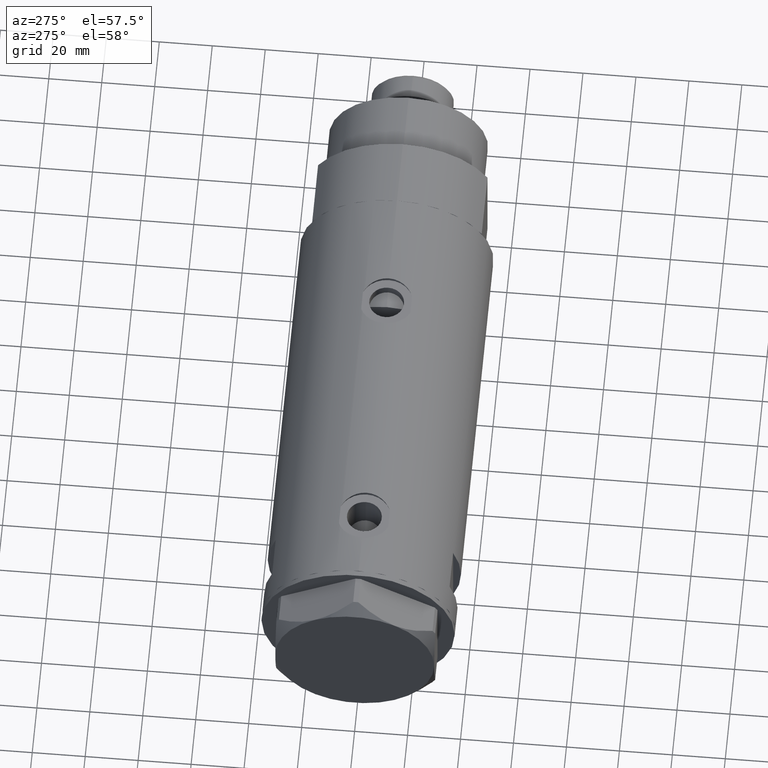
[diagram: clean part render]
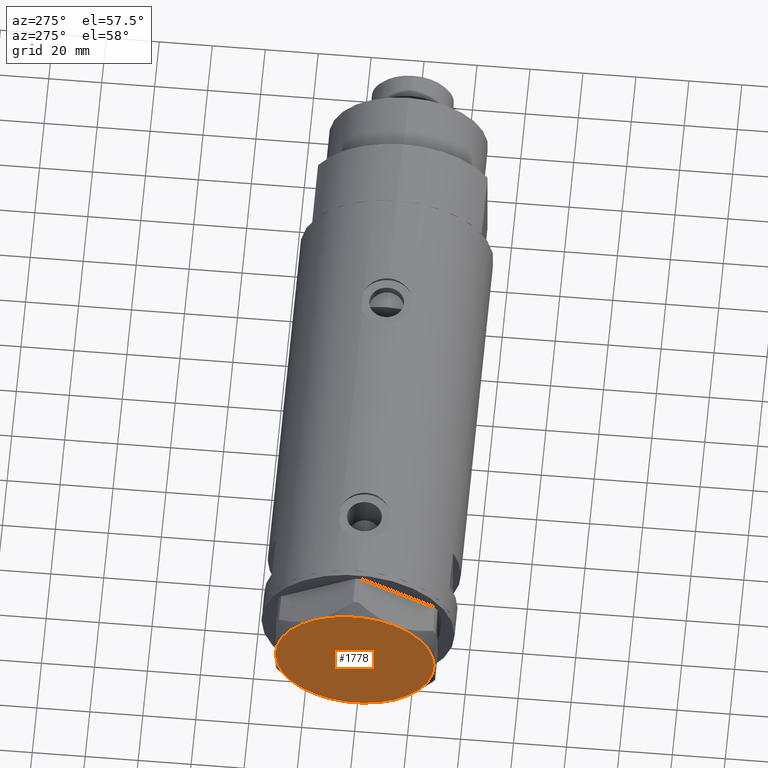
[diagram: same view with one face highlighted and labeled with its STEP entity id]
A machine part, auxiliary view. The second image highlights one B-rep face of the part: STEP entity #1778.
In plain terms, the highlighted planar face has unit normal (-1, -0, 0).
Its self-contained STEP definition (entity closure, byte-faithful):
#28 = VERTEX_POINT ( 'NONE', #997 ) ;
#39 = CARTESIAN_POINT ( 'NONE',  ( -14.99999999999999645, -25.98076211353316367, 14.50000000000000000 ) ) ;
#106 = VERTEX_POINT ( 'NONE', #4785 ) ;
#117 = DIRECTION ( 'NONE',  ( 0.000000000000000000, 0.000000000000000000, 1.000000000000000000 ) ) ;
#129 = DIRECTION ( 'NONE',  ( 0.000000000000000000, 0.000000000000000000, 1.000000000000000000 ) ) ;
#170 = AXIS2_PLACEMENT_3D ( 'NONE', #2016, #3597, #551 ) ;
#194 = ORIENTED_EDGE ( 'NONE', *, *, #755, .T. ) ;
#327 = AXIS2_PLACEMENT_3D ( 'NONE', #2415, #1729, #3885 ) ;
#551 = DIRECTION ( 'NONE',  ( 1.000000000000000000, 0.000000000000000000, 0.000000000000000000 ) ) ;
#576 = EDGE_CURVE ( 'NONE', #3097, #3958, #2876, .T. ) ;
#582 = DIRECTION ( 'NONE',  ( 1.000000000000000000, 0.000000000000000000, 0.000000000000000000 ) ) ;
#755 = EDGE_CURVE ( 'NONE', #28, #4384, #4737, .T. ) ;
#891 = AXIS2_PLACEMENT_3D ( 'NONE', #4671, #2831, #3624 ) ;
#925 = ORIENTED_EDGE ( 'NONE', *, *, #576, .T. ) ;
#997 = CARTESIAN_POINT ( 'NONE',  ( -30.00000000000000000, 0.000000000000000000, 14.50000000000000000 ) ) ;
#1015 = EDGE_CURVE ( 'NONE', #4384, #3864, #2946, .T. ) ;
#1091 = PLANE ( 'NONE',  #891 ) ;
#1254 = DIRECTION ( 'NONE',  ( 1.000000000000000000, 0.000000000000000000, 0.000000000000000000 ) ) ;
#1579 = AXIS2_PLACEMENT_3D ( 'NONE', #3943, #3620, #2543 ) ;
#1585 = AXIS2_PLACEMENT_3D ( 'NONE', #2409, #129, #1254 ) ;
#1729 = DIRECTION ( 'NONE',  ( 0.000000000000000000, 0.000000000000000000, 1.000000000000000000 ) ) ;
#1751 = CIRCLE ( 'NONE', #170, 30.00000000000000000 ) ;
#1778 = ADVANCED_FACE ( 'NONE', ( #3526 ), #1091, .T. ) ;
#1922 = CARTESIAN_POINT ( 'NONE',  ( 14.99999999999999467, 25.98076211353316367, 14.50000000000000000 ) ) ;
#2016 = CARTESIAN_POINT ( 'NONE',  ( 0.000000000000000000, 0.000000000000000000, 14.50000000000000000 ) ) ;
#2059 = AXIS2_PLACEMENT_3D ( 'NONE', #4550, #117, #582 ) ;
#2211 = CIRCLE ( 'NONE', #1585, 30.00000000000000000 ) ;
#2239 = EDGE_CURVE ( 'NONE', #3958, #106, #4137, .T. ) ;
#2409 = CARTESIAN_POINT ( 'NONE',  ( 0.000000000000000000, 0.000000000000000000, 14.50000000000000000 ) ) ;
#2415 = CARTESIAN_POINT ( 'NONE',  ( 0.000000000000000000, 0.000000000000000000, 14.50000000000000000 ) ) ;
#2543 = DIRECTION ( 'NONE',  ( 1.000000000000000000, 0.000000000000000000, 0.000000000000000000 ) ) ;
#2555 = ORIENTED_EDGE ( 'NONE', *, *, #2239, .T. ) ;
#2579 = AXIS2_PLACEMENT_3D ( 'NONE', #4551, #3365, #4146 ) ;
#2724 = EDGE_CURVE ( 'NONE', #3864, #3097, #1751, .T. ) ;
#2831 = DIRECTION ( 'NONE',  ( 0.000000000000000000, 0.000000000000000000, 1.000000000000000000 ) ) ;
#2876 = CIRCLE ( 'NONE', #2579, 30.00000000000000000 ) ;
#2922 = ORIENTED_EDGE ( 'NONE', *, *, #2724, .T. ) ;
#2946 = CIRCLE ( 'NONE', #327, 30.00000000000000000 ) ;
#3097 = VERTEX_POINT ( 'NONE', #3980 ) ;
#3289 = EDGE_CURVE ( 'NONE', #106, #28, #2211, .T. ) ;
#3330 = CARTESIAN_POINT ( 'NONE',  ( 14.99999999999998757, -25.98076211353316722, 14.50000000000000000 ) ) ;
#3365 = DIRECTION ( 'NONE',  ( 0.000000000000000000, 0.000000000000000000, 1.000000000000000000 ) ) ;
#3526 = FACE_OUTER_BOUND ( 'NONE', #4240, .T. ) ;
#3552 = ORIENTED_EDGE ( 'NONE', *, *, #1015, .T. ) ;
#3597 = DIRECTION ( 'NONE',  ( 0.000000000000000000, 0.000000000000000000, 1.000000000000000000 ) ) ;
#3620 = DIRECTION ( 'NONE',  ( 0.000000000000000000, 0.000000000000000000, 1.000000000000000000 ) ) ;
#3624 = DIRECTION ( 'NONE',  ( 1.000000000000000000, 0.000000000000000000, -0.000000000000000000 ) ) ;
#3781 = ORIENTED_EDGE ( 'NONE', *, *, #3289, .T. ) ;
#3864 = VERTEX_POINT ( 'NONE', #3330 ) ;
#3885 = DIRECTION ( 'NONE',  ( 1.000000000000000000, 0.000000000000000000, 0.000000000000000000 ) ) ;
#3943 = CARTESIAN_POINT ( 'NONE',  ( 0.000000000000000000, 0.000000000000000000, 14.50000000000000000 ) ) ;
#3958 = VERTEX_POINT ( 'NONE', #1922 ) ;
#3980 = CARTESIAN_POINT ( 'NONE',  ( 30.00000000000000000, 9.013887592422954582E-15, 14.50000000000000000 ) ) ;
#4137 = CIRCLE ( 'NONE', #2059, 30.00000000000000000 ) ;
#4146 = DIRECTION ( 'NONE',  ( 1.000000000000000000, 0.000000000000000000, 0.000000000000000000 ) ) ;
#4240 = EDGE_LOOP ( 'NONE', ( #2922, #925, #2555, #3781, #194, #3552 ) ) ;
#4384 = VERTEX_POINT ( 'NONE', #39 ) ;
#4550 = CARTESIAN_POINT ( 'NONE',  ( 0.000000000000000000, 0.000000000000000000, 14.50000000000000000 ) ) ;
#4551 = CARTESIAN_POINT ( 'NONE',  ( 0.000000000000000000, 0.000000000000000000, 14.50000000000000000 ) ) ;
#4671 = CARTESIAN_POINT ( 'NONE',  ( 0.000000000000000000, 0.000000000000000000, 14.50000000000000000 ) ) ;
#4737 = CIRCLE ( 'NONE', #1579, 30.00000000000000000 ) ;
#4785 = CARTESIAN_POINT ( 'NONE',  ( -14.99999999999999645, 25.98076211353316367, 14.50000000000000000 ) ) ;